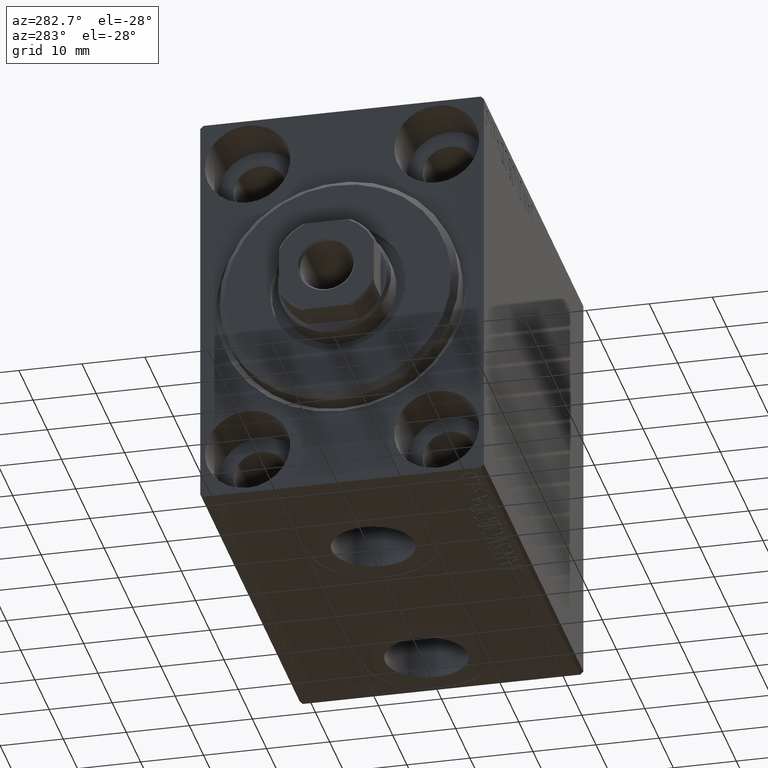
[diagram: clean part render]
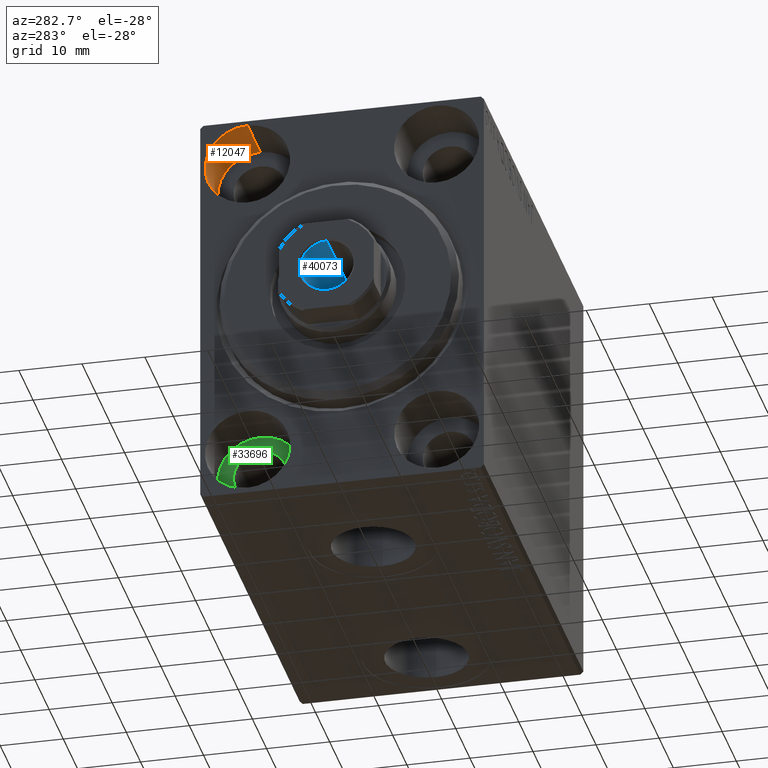
[diagram: same view with three faces highlighted in distinct colors, each labeled with its STEP entity id]
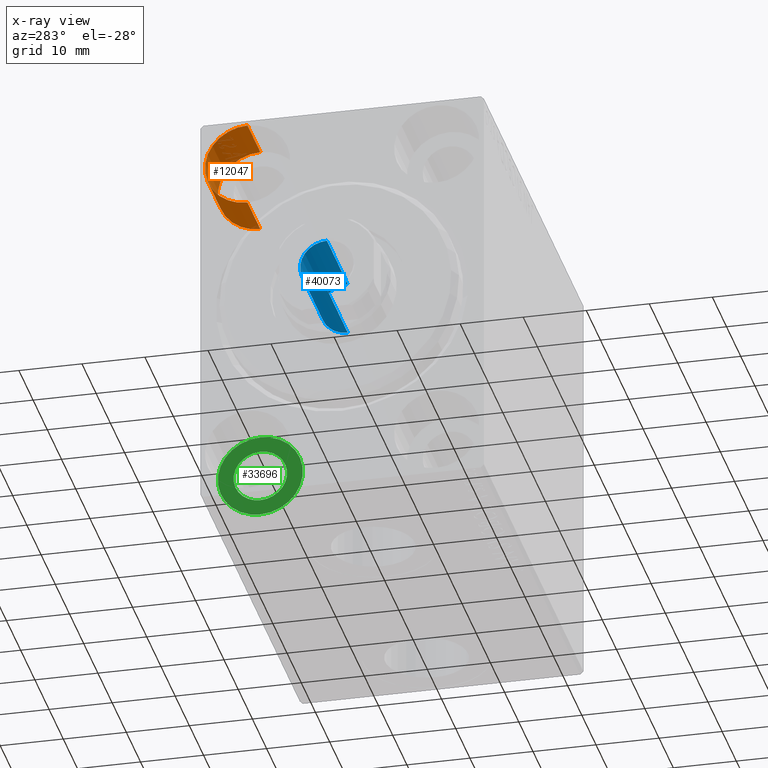
[diagram: x-ray of the same camera — body ghosted, the three highlighted faces saturated]
A machine part, auxiliary view with three faces highlighted in distinct colors.
The next image is the same camera in x-ray (body ghosted, the three faces saturated) — at least one of them is partly hidden behind the body in this view.
Their STEP definitions:

[orange] entity #12047 — the highlighted cylindrical surface (partial cylindrical patch) has radius 6.75 mm, axis along (-1, -0, -0).
#1135 = EDGE_LOOP ( 'NONE', ( #27404, #20483, #30925, #28552 ) ) ;
#1643 = CARTESIAN_POINT ( 'NONE',  ( 9.000000000000000000, 15.00000000000000355, 25.00000000000000000 ) ) ;
#3009 = EDGE_CURVE ( 'NONE', #41900, #5117, #15839, .T. ) ;
#4915 = CARTESIAN_POINT ( 'NONE',  ( 9.000000000000000000, 15.00000000000000355, 18.25000000000000355 ) ) ;
#5117 = VERTEX_POINT ( 'NONE', #17040 ) ;
#9160 = CARTESIAN_POINT ( 'NONE',  ( 9.000000000000000000, 15.00000000000000355, 31.75000000000000000 ) ) ;
#9853 = CARTESIAN_POINT ( 'NONE',  ( 9.000000000000000000, 15.00000000000000355, 31.75000000000000000 ) ) ;
#10190 = CIRCLE ( 'NONE', #23001, 6.749999999999999112 ) ;
#12047 = ADVANCED_FACE ( 'NONE', ( #25223 ), #35239, .F. ) ;
#12063 = CIRCLE ( 'NONE', #36916, 6.749999999999999112 ) ;
#15476 = VERTEX_POINT ( 'NONE', #21767 ) ;
#15839 = LINE ( 'NONE', #4915, #38043 ) ;
#17009 = DIRECTION ( 'NONE',  ( -1.000000000000000000, 0.000000000000000000, 0.000000000000000000 ) ) ;
#17040 = CARTESIAN_POINT ( 'NONE',  ( 0.000000000000000000, 15.00000000000000355, 18.25000000000000355 ) ) ;
#17223 = DIRECTION ( 'NONE',  ( 0.000000000000000000, 0.000000000000000000, 1.000000000000000000 ) ) ;
#17764 = EDGE_CURVE ( 'NONE', #29493, #15476, #36734, .T. ) ;
#20483 = ORIENTED_EDGE ( 'NONE', *, *, #39717, .F. ) ;
#21767 = CARTESIAN_POINT ( 'NONE',  ( 0.000000000000000000, 15.00000000000000355, 31.75000000000000000 ) ) ;
#23001 = AXIS2_PLACEMENT_3D ( 'NONE', #41002, #17009, #17223 ) ;
#23487 = EDGE_CURVE ( 'NONE', #15476, #5117, #12063, .T. ) ;
#25223 = FACE_OUTER_BOUND ( 'NONE', #1135, .T. ) ;
#27404 = ORIENTED_EDGE ( 'NONE', *, *, #3009, .F. ) ;
#28316 = AXIS2_PLACEMENT_3D ( 'NONE', #1643, #28780, #38794 ) ;
#28552 = ORIENTED_EDGE ( 'NONE', *, *, #23487, .T. ) ;
#28780 = DIRECTION ( 'NONE',  ( -1.000000000000000000, -0.000000000000000000, -0.000000000000000000 ) ) ;
#29020 = DIRECTION ( 'NONE',  ( -1.000000000000000000, 0.000000000000000000, 0.000000000000000000 ) ) ;
#29243 = DIRECTION ( 'NONE',  ( 0.000000000000000000, 0.000000000000000000, 1.000000000000000000 ) ) ;
#29493 = VERTEX_POINT ( 'NONE', #9853 ) ;
#30925 = ORIENTED_EDGE ( 'NONE', *, *, #17764, .T. ) ;
#34054 = CARTESIAN_POINT ( 'NONE',  ( 9.000000000000000000, 15.00000000000000355, 18.25000000000000355 ) ) ;
#35239 = CYLINDRICAL_SURFACE ( 'NONE', #28316, 6.749999999999999112 ) ;
#35930 = CARTESIAN_POINT ( 'NONE',  ( 0.000000000000000000, 15.00000000000000355, 25.00000000000000000 ) ) ;
#36076 = DIRECTION ( 'NONE',  ( -1.000000000000000000, -0.000000000000000000, -0.000000000000000000 ) ) ;
#36734 = LINE ( 'NONE', #9160, #40337 ) ;
#36916 = AXIS2_PLACEMENT_3D ( 'NONE', #35930, #29020, #29243 ) ;
#38043 = VECTOR ( 'NONE', #36076, 1000.000000000000000 ) ;
#38794 = DIRECTION ( 'NONE',  ( 0.000000000000000000, 0.000000000000000000, 1.000000000000000000 ) ) ;
#39717 = EDGE_CURVE ( 'NONE', #29493, #41900, #10190, .T. ) ;
#40337 = VECTOR ( 'NONE', #43183, 1000.000000000000000 ) ;
#41002 = CARTESIAN_POINT ( 'NONE',  ( 9.000000000000000000, 15.00000000000000355, 25.00000000000000000 ) ) ;
#41900 = VERTEX_POINT ( 'NONE', #34054 ) ;
#43183 = DIRECTION ( 'NONE',  ( -1.000000000000000000, -0.000000000000000000, -0.000000000000000000 ) ) ;

[blue] entity #40073 — the highlighted cylindrical surface (edge-blend (fillet) strip) has radius 4.25 mm, axis along (-1, 0, 0).
#243 = CARTESIAN_POINT ( 'NONE',  ( 4.249999999999997335, 0.000000000000000000, 74.70000000000001705 ) ) ;
#1036 = CIRCLE ( 'NONE', #33047, 4.249999999999996447 ) ;
#1230 = CARTESIAN_POINT ( 'NONE',  ( 0.000000000000000000, 0.000000000000000000, 60.00000000000001421 ) ) ;
#5170 = ORIENTED_EDGE ( 'NONE', *, *, #30314, .T. ) ;
#5637 = DIRECTION ( 'NONE',  ( 1.000000000000000000, 0.000000000000000000, 0.000000000000000000 ) ) ;
#5940 = VERTEX_POINT ( 'NONE', #41740 ) ;
#5994 = EDGE_CURVE ( 'NONE', #26108, #37096, #41309, .T. ) ;
#7912 = DIRECTION ( 'NONE',  ( -0.000000000000000000, -0.000000000000000000, 1.000000000000000000 ) ) ;
#8161 = ORIENTED_EDGE ( 'NONE', *, *, #5994, .T. ) ;
#8407 = DIRECTION ( 'NONE',  ( 0.000000000000000000, 0.000000000000000000, 1.000000000000000000 ) ) ;
#8518 = FACE_OUTER_BOUND ( 'NONE', #28551, .T. ) ;
#9076 = DIRECTION ( 'NONE',  ( 1.000000000000000000, 0.000000000000000000, 0.000000000000000000 ) ) ;
#10135 = ORIENTED_EDGE ( 'NONE', *, *, #33364, .F. ) ;
#10937 = AXIS2_PLACEMENT_3D ( 'NONE', #42998, #15660, #5637 ) ;
#12499 = ORIENTED_EDGE ( 'NONE', *, *, #42787, .F. ) ;
#13597 = DIRECTION ( 'NONE',  ( -0.000000000000000000, -0.000000000000000000, 1.000000000000000000 ) ) ;
#15660 = DIRECTION ( 'NONE',  ( -0.000000000000000000, -0.000000000000000000, 1.000000000000000000 ) ) ;
#17097 = DIRECTION ( 'NONE',  ( -0.000000000000000000, -0.000000000000000000, 1.000000000000000000 ) ) ;
#17197 = CIRCLE ( 'NONE', #43483, 4.249999999999997335 ) ;
#17807 = LINE ( 'NONE', #27163, #22876 ) ;
#18534 = CYLINDRICAL_SURFACE ( 'NONE', #10937, 4.249999999999997335 ) ;
#22876 = VECTOR ( 'NONE', #13597, 1000.000000000000000 ) ;
#23143 = VECTOR ( 'NONE', #17097, 1000.000000000000000 ) ;
#26108 = VERTEX_POINT ( 'NONE', #29027 ) ;
#27163 = CARTESIAN_POINT ( 'NONE',  ( -4.249999999999997335, 5.204748896376248727E-16, 75.00000000000001421 ) ) ;
#28551 = EDGE_LOOP ( 'NONE', ( #10135, #12499, #8161, #5170 ) ) ;
#28813 = DIRECTION ( 'NONE',  ( 1.000000000000000000, 0.000000000000000000, 0.000000000000000000 ) ) ;
#29027 = CARTESIAN_POINT ( 'NONE',  ( 4.249999999999996447, 0.000000000000000000, 60.00000000000001421 ) ) ;
#30314 = EDGE_CURVE ( 'NONE', #37096, #5940, #17197, .T. ) ;
#31519 = CARTESIAN_POINT ( 'NONE',  ( 4.249999999999997335, 0.000000000000000000, 75.00000000000001421 ) ) ;
#33047 = AXIS2_PLACEMENT_3D ( 'NONE', #1230, #7912, #28813 ) ;
#33364 = EDGE_CURVE ( 'NONE', #38082, #5940, #17807, .T. ) ;
#36003 = CARTESIAN_POINT ( 'NONE',  ( 0.000000000000000000, 0.000000000000000000, 74.70000000000001705 ) ) ;
#37096 = VERTEX_POINT ( 'NONE', #243 ) ;
#38082 = VERTEX_POINT ( 'NONE', #38927 ) ;
#38927 = CARTESIAN_POINT ( 'NONE',  ( -4.249999999999996447, 5.204748896376247741E-16, 60.00000000000001421 ) ) ;
#40073 = ADVANCED_FACE ( 'NONE', ( #8518 ), #18534, .F. ) ;
#41309 = LINE ( 'NONE', #31519, #23143 ) ;
#41740 = CARTESIAN_POINT ( 'NONE',  ( -4.249999999999997335, 5.204748896376248727E-16, 74.70000000000001705 ) ) ;
#42787 = EDGE_CURVE ( 'NONE', #26108, #38082, #1036, .T. ) ;
#42998 = CARTESIAN_POINT ( 'NONE',  ( 0.000000000000000000, 0.000000000000000000, 75.00000000000001421 ) ) ;
#43483 = AXIS2_PLACEMENT_3D ( 'NONE', #36003, #8407, #9076 ) ;

[green] entity #33696 — the highlighted planar face has unit normal (-1, 0, 0).
#956 = DIRECTION ( 'NONE',  ( -1.000000000000000000, 0.000000000000000000, 0.000000000000000000 ) ) ;
#1171 = EDGE_CURVE ( 'NONE', #3589, #3817, #3220, .T. ) ;
#3220 = CIRCLE ( 'NONE', #20270, 6.749999999999999112 ) ;
#3589 = VERTEX_POINT ( 'NONE', #11713 ) ;
#3817 = VERTEX_POINT ( 'NONE', #22874 ) ;
#4913 = ORIENTED_EDGE ( 'NONE', *, *, #1171, .T. ) ;
#6465 = DIRECTION ( 'NONE',  ( 0.000000000000000000, 0.000000000000000000, 1.000000000000000000 ) ) ;
#6923 = AXIS2_PLACEMENT_3D ( 'NONE', #23802, #12938, #6465 ) ;
#7292 = DIRECTION ( 'NONE',  ( 0.000000000000000000, 0.000000000000000000, 1.000000000000000000 ) ) ;
#7567 = CIRCLE ( 'NONE', #34564, 4.249999999999996447 ) ;
#8132 = FACE_BOUND ( 'NONE', #19715, .T. ) ;
#8835 = EDGE_CURVE ( 'NONE', #40553, #22418, #7567, .T. ) ;
#9702 = EDGE_LOOP ( 'NONE', ( #22436, #4913 ) ) ;
#11713 = CARTESIAN_POINT ( 'NONE',  ( 9.000000000000000000, 14.99999999999999645, -31.75000000000000000 ) ) ;
#12093 = CIRCLE ( 'NONE', #41205, 4.249999999999996447 ) ;
#12938 = DIRECTION ( 'NONE',  ( -1.000000000000000000, 0.000000000000000000, 0.000000000000000000 ) ) ;
#14160 = CARTESIAN_POINT ( 'NONE',  ( 9.000000000000000000, 14.99999999999999645, -25.00000000000000000 ) ) ;
#14294 = ORIENTED_EDGE ( 'NONE', *, *, #24881, .F. ) ;
#14591 = FACE_OUTER_BOUND ( 'NONE', #9702, .T. ) ;
#15470 = CIRCLE ( 'NONE', #6923, 6.749999999999999112 ) ;
#16291 = EDGE_CURVE ( 'NONE', #3817, #3589, #15470, .T. ) ;
#16299 = ORIENTED_EDGE ( 'NONE', *, *, #8835, .F. ) ;
#17532 = CARTESIAN_POINT ( 'NONE',  ( 9.000000000000001776, 14.99999999999999645, -25.00000000000000000 ) ) ;
#18366 = PLANE ( 'NONE',  #29948 ) ;
#19715 = EDGE_LOOP ( 'NONE', ( #16299, #14294 ) ) ;
#20270 = AXIS2_PLACEMENT_3D ( 'NONE', #22745, #27330, #30658 ) ;
#21423 = DIRECTION ( 'NONE',  ( 0.000000000000000000, 0.000000000000000000, 1.000000000000000000 ) ) ;
#22418 = VERTEX_POINT ( 'NONE', #39897 ) ;
#22436 = ORIENTED_EDGE ( 'NONE', *, *, #16291, .T. ) ;
#22745 = CARTESIAN_POINT ( 'NONE',  ( 9.000000000000000000, 14.99999999999999645, -25.00000000000000000 ) ) ;
#22874 = CARTESIAN_POINT ( 'NONE',  ( 9.000000000000000000, 14.99999999999999645, -18.25000000000000355 ) ) ;
#23802 = CARTESIAN_POINT ( 'NONE',  ( 9.000000000000000000, 14.99999999999999645, -25.00000000000000000 ) ) ;
#24155 = DIRECTION ( 'NONE',  ( 0.000000000000000000, 0.000000000000000000, 1.000000000000000000 ) ) ;
#24881 = EDGE_CURVE ( 'NONE', #22418, #40553, #12093, .T. ) ;
#27330 = DIRECTION ( 'NONE',  ( -1.000000000000000000, 0.000000000000000000, 0.000000000000000000 ) ) ;
#27981 = CARTESIAN_POINT ( 'NONE',  ( 9.000000000000001776, 14.99999999999999645, -20.75000000000000355 ) ) ;
#29948 = AXIS2_PLACEMENT_3D ( 'NONE', #14160, #38599, #24155 ) ;
#30658 = DIRECTION ( 'NONE',  ( 0.000000000000000000, 0.000000000000000000, 1.000000000000000000 ) ) ;
#31088 = DIRECTION ( 'NONE',  ( -1.000000000000000000, 0.000000000000000000, 0.000000000000000000 ) ) ;
#33696 = ADVANCED_FACE ( 'NONE', ( #8132, #14591 ), #18366, .T. ) ;
#34564 = AXIS2_PLACEMENT_3D ( 'NONE', #41880, #956, #21423 ) ;
#38599 = DIRECTION ( 'NONE',  ( -1.000000000000000000, 0.000000000000000000, 0.000000000000000000 ) ) ;
#39897 = CARTESIAN_POINT ( 'NONE',  ( 9.000000000000001776, 14.99999999999999645, -29.25000000000000000 ) ) ;
#40553 = VERTEX_POINT ( 'NONE', #27981 ) ;
#41205 = AXIS2_PLACEMENT_3D ( 'NONE', #17532, #31088, #7292 ) ;
#41880 = CARTESIAN_POINT ( 'NONE',  ( 9.000000000000001776, 14.99999999999999645, -25.00000000000000000 ) ) ;